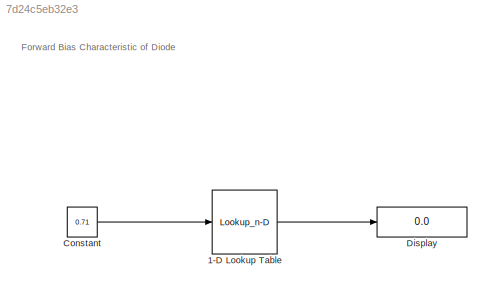
MODEL slx_7d24c5eb32e3
KIND model
CONFIG AbsTol = auto
CONFIG EnableMultiTasking = off
CONFIG FixedStep = auto
CONFIG MaxStep = auto
CONFIG MinStep = auto
CONFIG RelTol = 1e-3
CONFIG SampleTimeConstraint = Unconstrained
CONFIG SolverName = VariableStepAuto
CONFIG StartTime = 0.0
CONFIG StopTime = 10.0
BLOCK [Lookup_n-D] 1-D Lookup Table
  BreakpointsForDimension1 = [0 0.58 0.66 0.69 0.70 0.71 0.72 0.73 0.74 0.75 0.76 0.77]
  InputPortMap = u0
  InternalRulePriority = Speed
  NumberOfTableDimensions = 1
  Ports = [1, 1]
  RndMeth = Simplest
  Table = [0 0 5 10 15 20 25 30 40 55 70 100]
BLOCK [Constant] Constant
  Value = 0.71
BLOCK [Display] Display
  Decimation = 1
  Ports = [1]
ANNOTATION (root): Forward Bias Characteristic of Diode
LINE 1-D Lookup Table:1 -> Display:1
LINE Constant:1 -> 1-D Lookup Table:1
